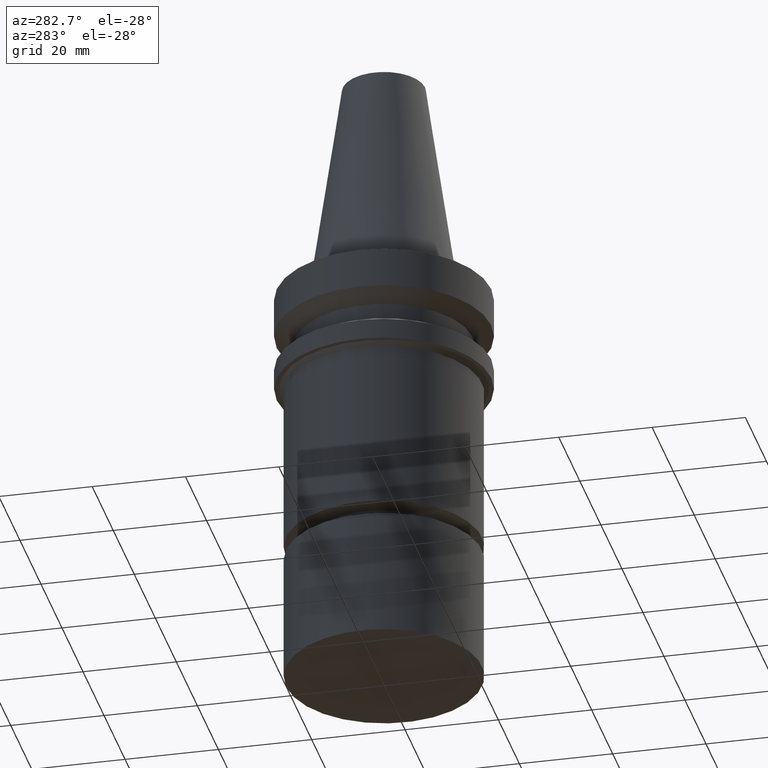
[diagram: clean part render]
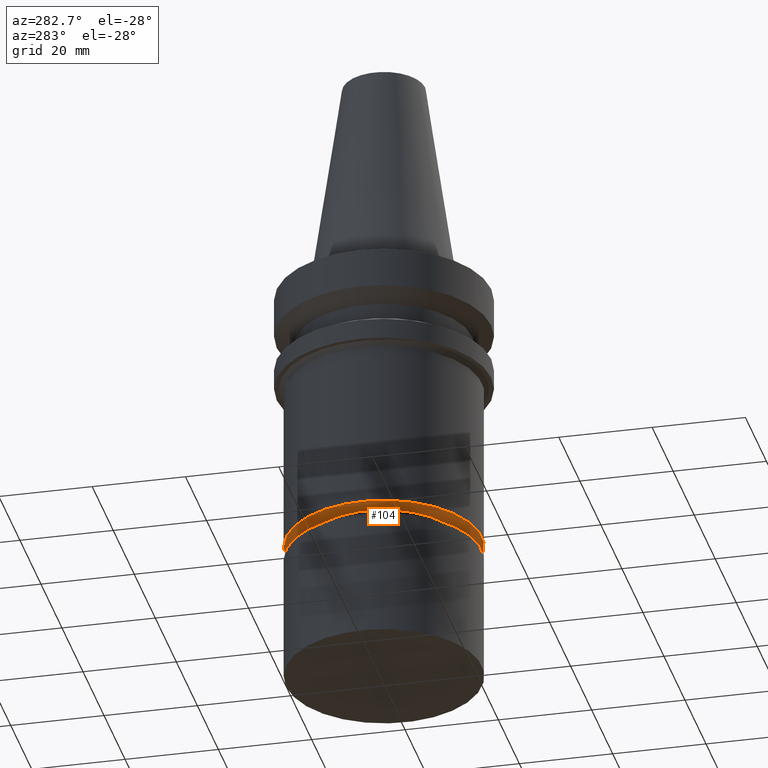
[diagram: same view with one face highlighted and labeled with its STEP entity id]
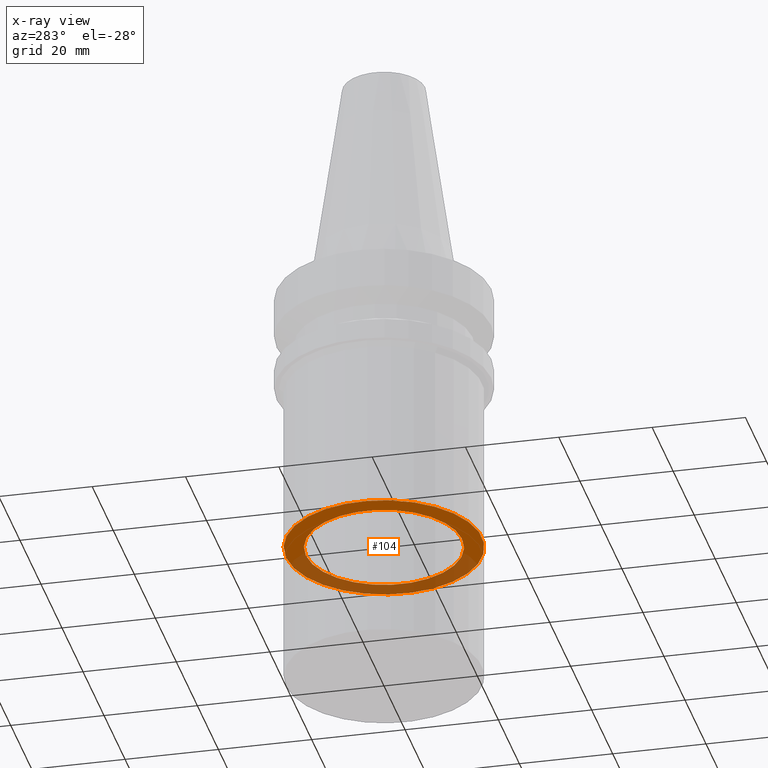
[diagram: x-ray of the same camera — body ghosted, the highlighted face saturated]
A machine part, auxiliary view. The second image highlights one B-rep face of the part: STEP entity #104.
The next image is the same camera in x-ray: the body ghosted, the highlighted face saturated — about 42% of this face is hidden behind the body in this view.
In plain terms, the highlighted planar face has unit normal (0, -0, -1).
Its self-contained STEP definition (entity closure, byte-faithful):
#104=ADVANCED_FACE('Unnamed[1]',(#246,#247),#248,.T.);
#114=EDGE_CURVE('Unnamed[1]',#262,#262,#263,.T.);
#180=EDGE_CURVE('Unnamed[1]',#362,#362,#363,.T.);
#246=FACE_BOUND('',#433,.T.);
#247=FACE_OUTER_BOUND('',#434,.T.);
#248=PLANE('',#435);
#262=VERTEX_POINT('',#453);
#263=CIRCLE('',#454,16.7499999999907);
#362=VERTEX_POINT('',#577);
#363=CIRCLE('',#578,21.0000000000002);
#433=EDGE_LOOP('',(#631));
#434=EDGE_LOOP('',(#632));
#435=AXIS2_PLACEMENT_3D('',#633,#634,#635);
#453=CARTESIAN_POINT('',(3.64332422746333E-015,16.7499999999907,-59.4999999999992));
#454=AXIS2_PLACEMENT_3D('',#650,#651,#652);
#577=CARTESIAN_POINT('',(3.64332422746337E-015,21.0000000000002,-59.5));
#578=AXIS2_PLACEMENT_3D('',#758,#759,#760);
#631=ORIENTED_EDGE('',*,*,#114,.F.);
#632=ORIENTED_EDGE('',*,*,#180,.T.);
#633=CARTESIAN_POINT('',(3.64332422746335E-015,18.8749999999955,-59.4999999999996));
#634=DIRECTION('',(6.12323399573677E-017,-1.72079657162739E-013,-1.0));
#635=DIRECTION('',(1.05320129144053E-029,1.0,-1.72079657162739E-013));
#650=CARTESIAN_POINT('',(3.64332422746333E-015,7.28664845492665E-015,-59.4999999999992));
#651=DIRECTION('',(6.12323399573677E-017,1.22464679914705E-016,-1.0));
#652=DIRECTION('',(-1.23259516440798E-032,1.0,1.22464679914705E-016));
#758=CARTESIAN_POINT('',(3.64332422746337E-015,7.28664845492674E-015,-59.5));
#759=DIRECTION('',(6.12323399573677E-017,1.22464679914769E-016,-1.0));
#760=DIRECTION('',(-1.23259516440782E-032,1.0,1.22464679914769E-016));